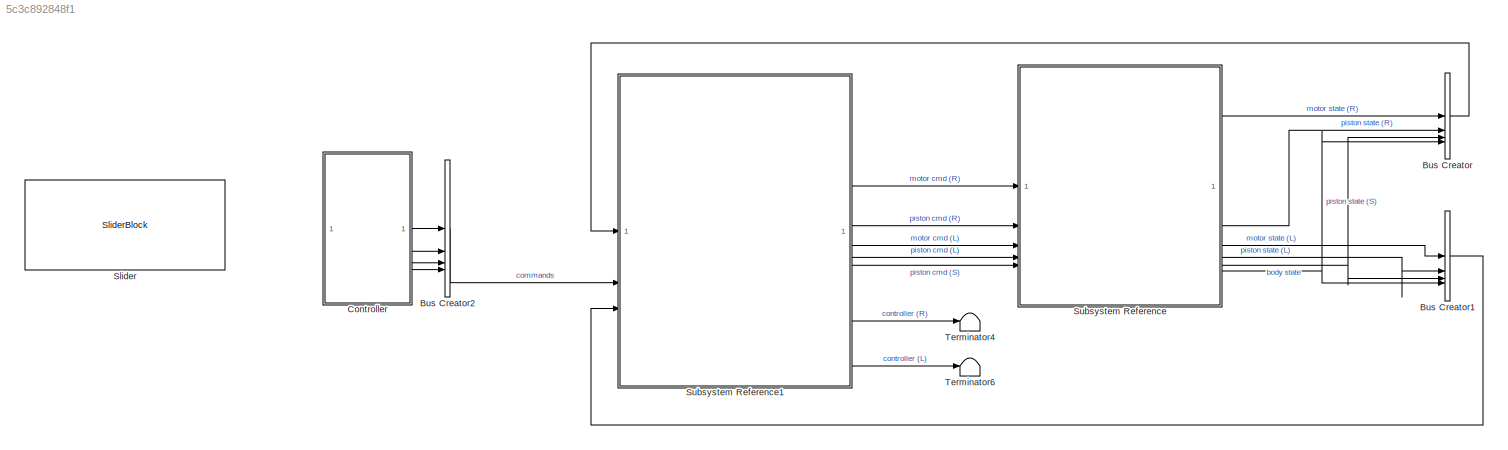
MODEL slx_5c3c892848f1
KIND model
CONFIG AbsTol = auto
CONFIG EnableMultiTasking = on
CONFIG FixedStep = auto
CONFIG InitFcn = run('initBusObjects.m')\nrun('parameters.m')
CONFIG MaxStep = auto
CONFIG MinStep = auto
CONFIG RelTol = 1e-3
CONFIG SampleTimeConstraint = Unconstrained
CONFIG SolverName = FixedStepDiscrete
CONFIG StartTime = 0.0
CONFIG StopTime = inf
WORKSPACE source: mxarray member
WORKSPACE omega = 8
WORKSPACE zeta = 0.05
BLOCK [BusCreator] Bus Creator
  DisplayOption = bar
  InheritFromInputs = off
  Inputs = 4
  NonVirtualBus = on
  OutDataTypeStr = Bus: State
BLOCK [BusCreator] Bus Creator1
  DisplayOption = bar
  InheritFromInputs = off
  Inputs = 4
  NonVirtualBus = on
  OutDataTypeStr = Bus: State
BLOCK [BusCreator] Bus Creator2
  DisplayOption = bar
  InheritFromInputs = off
  Inputs = 4
  NonVirtualBus = on
  OutDataTypeStr = Bus: Command
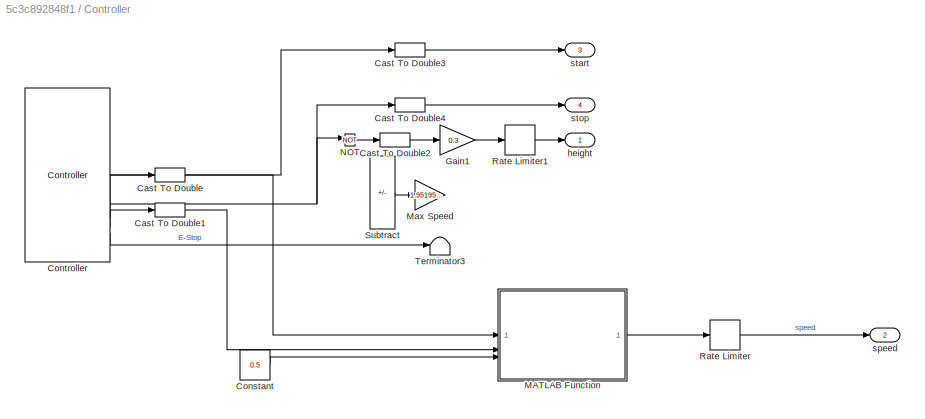
BLOCK [SubSystem] Controller
BLOCK [DataTypeConversion] Controller/Cast To Double
  OutDataTypeStr = double
  RndMeth = Floor
  SaturateOnIntegerOverflow = off
BLOCK [DataTypeConversion] Controller/Cast To Double1
  OutDataTypeStr = double
  RndMeth = Floor
  SaturateOnIntegerOverflow = off
BLOCK [DataTypeConversion] Controller/Cast To Double2
  OutDataTypeStr = double
  RndMeth = Floor
  SaturateOnIntegerOverflow = off
BLOCK [DataTypeConversion] Controller/Cast To Double3
  OutDataTypeStr = double
  RndMeth = Floor
  SaturateOnIntegerOverflow = off
BLOCK [DataTypeConversion] Controller/Cast To Double4
  OutDataTypeStr = double
  RndMeth = Floor
  SaturateOnIntegerOverflow = off
BLOCK [Constant] Controller/Constant
  Value = 0.5
BLOCK [Reference] Controller/Controller  REF=aru_toolbox/Controller
  SourceBlock = aru_toolbox/Controller
  SourceProductName = ARU Toolbox
BLOCK [Gain] Controller/Gain1
  Gain = 0.3
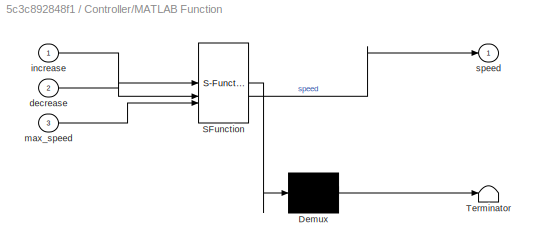
BLOCK [SubSystem] Controller/MATLAB Function
  ErrorFcn = Stateflow.Translate.translate
  PermitHierarchicalResolution = ExplicitOnly
  SFBlockType = MATLAB Function
  TreatAsAtomicUnit = on
BLOCK [Demux] Controller/MATLAB Function/ Demux 
  Outputs = 1
BLOCK [S-Function] Controller/MATLAB Function/ SFunction 
  EnableBusSupport = on
  FunctionName = sf_sfun
  PortCounts = [3 2]
  SFcnIsStateOwnerBlock = off
  SFunctionDeploymentMode = off
  Tag = Stateflow S-Function 11
BLOCK [Terminator] Controller/MATLAB Function/ Terminator 
BLOCK [Inport] Controller/MATLAB Function/decrease
  Port = 2
BLOCK [Inport] Controller/MATLAB Function/increase
BLOCK [Inport] Controller/MATLAB Function/max_speed
  Port = 3
BLOCK [Outport] Controller/MATLAB Function/speed
BLOCK [Gain] Controller/Max Speed
  Commented = on
  Gain = 1.951952340866412
BLOCK [Logic] Controller/NOT
  AllPortsSameDT = off
  IconShape = distinctive
  Operator = NOT
  OutDataTypeStr = boolean
BLOCK [RateLimiter] Controller/Rate Limiter
  FallingSlewLimit = -0.15
  RisingSlewLimit = 0.15
  SampleTimeMode = inherited
BLOCK [RateLimiter] Controller/Rate Limiter1
  FallingSlewLimit = -0.05
  InitialCondition = 0.26
  RisingSlewLimit = 0.05
  SampleTimeMode = inherited
BLOCK [Sum] Controller/Subtract
  Commented = on
  IconShape = rectangular
  Inputs = +-
BLOCK [Terminator] Controller/Terminator3
BLOCK [Outport] Controller/height
BLOCK [Outport] Controller/speed
  Port = 2
BLOCK [Outport] Controller/start
  Port = 3
BLOCK [Outport] Controller/stop
  Port = 4
BLOCK [SliderBlock] Slider
  ScaleMax = 3.0
BLOCK [SubSystem] Subsystem Reference
  ReferencedSubsystem = hardware
  RollOffset = 0
BLOCK [SubSystem] Subsystem Reference1
  ReferencedSubsystem = bounding_controller_spine
BLOCK [Terminator] Terminator4
BLOCK [Terminator] Terminator6
LINE Bus Creator1:1 -> Subsystem Reference1:3
LINE Bus Creator2:1 -> Subsystem Reference1:2
LINE Bus Creator:1 -> Subsystem Reference1:1
LINE Controller/Cast To Double1:1 -> Controller/MATLAB Function:2
LINE Controller/Cast To Double2:1 -> Controller/Gain1:1
LINE Controller/Cast To Double3:1 -> Controller/start:1
LINE Controller/Cast To Double4:1 -> Controller/stop:1
LINE Controller/Cast To Double:1 -> Controller/MATLAB Function:1
LINE Controller/Constant:1 -> Controller/MATLAB Function:3
LINE Controller/Controller:1 -> Controller/Cast To Double3:1
NET Controller/Controller:2 -> Controller/Cast To Double4:1, Controller/NOT:1
LINE Controller/Controller:3 -> Controller/Cast To Double:1
LINE Controller/Controller:4 -> Controller/Cast To Double1:1
LINE Controller/Controller:5 -> Controller/Terminator3:1
LINE Controller/Gain1:1 -> Controller/Rate Limiter1:1
LINE Controller/MATLAB Function:1 -> Controller/Rate Limiter:1
LINE Controller/NOT:1 -> Controller/Cast To Double2:1
LINE Controller/Rate Limiter1:1 -> Controller/height:1
LINE Controller/Rate Limiter:1 -> Controller/speed:1
LINE Controller/Subtract:1 -> Controller/Max Speed:1
LINE Controller:1 -> Bus Creator2:1
LINE Controller:2 -> Bus Creator2:2
LINE Controller:3 -> Bus Creator2:3
LINE Controller:4 -> Bus Creator2:4
LINE Subsystem Reference1:1 -> Subsystem Reference:1
LINE Subsystem Reference1:2 -> Subsystem Reference:2
LINE Subsystem Reference1:3 -> Subsystem Reference:3
LINE Subsystem Reference1:4 -> Subsystem Reference:4
LINE Subsystem Reference1:5 -> Subsystem Reference:5
LINE Subsystem Reference1:6 -> Terminator4:1
LINE Subsystem Reference1:7 -> Terminator6:1
LINE Subsystem Reference:1 -> Bus Creator:1
LINE Subsystem Reference:2 -> Bus Creator:2
LINE Subsystem Reference:3 -> Bus Creator1:1
LINE Subsystem Reference:4 -> Bus Creator1:2
NET Subsystem Reference:5 -> Bus Creator1:3, Bus Creator:3
NET Subsystem Reference:6 -> Bus Creator1:4, Bus Creator:4
note: NET lines group one-source signal fan-out (src -> all destinations, sorted); 1:1 wires keep LINE
CHART Controller/MATLAB Function states=1 transitions=1
  STATE_LABEL 'eML_blk_kernel()'
  STATE_LABEL 'SCRIPT:\nfunction speed = speed_counter(increase, decrease,max_speed)\n\npersistent count;\n\nif isempty(count)\n    count = 0;\nend\n\ncount = count + increase - decrease;\n\nspeed = max(0,min(count,max_speed));\n'
CHART  states=0 transitions=0
